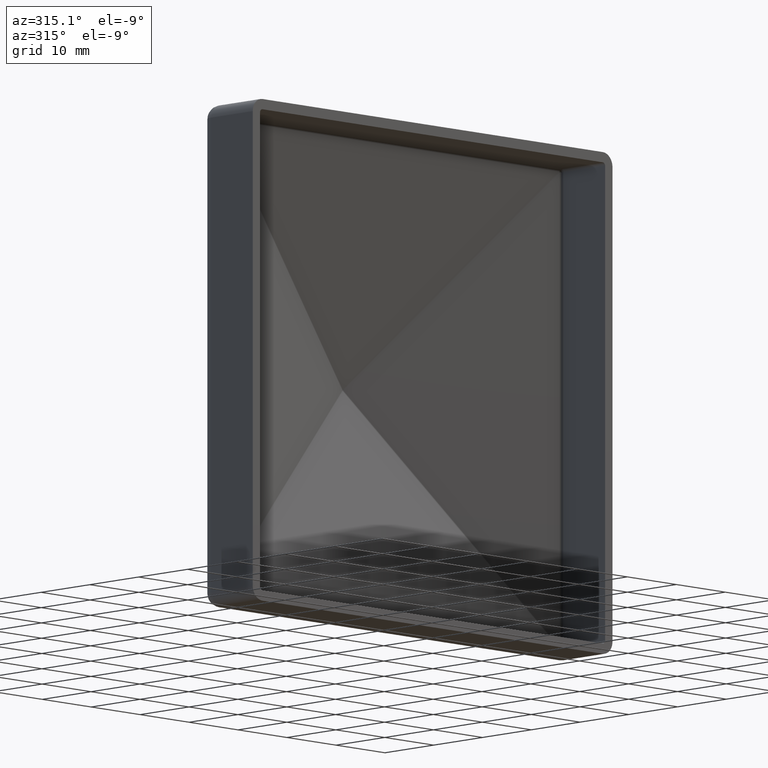
[diagram: clean part render]
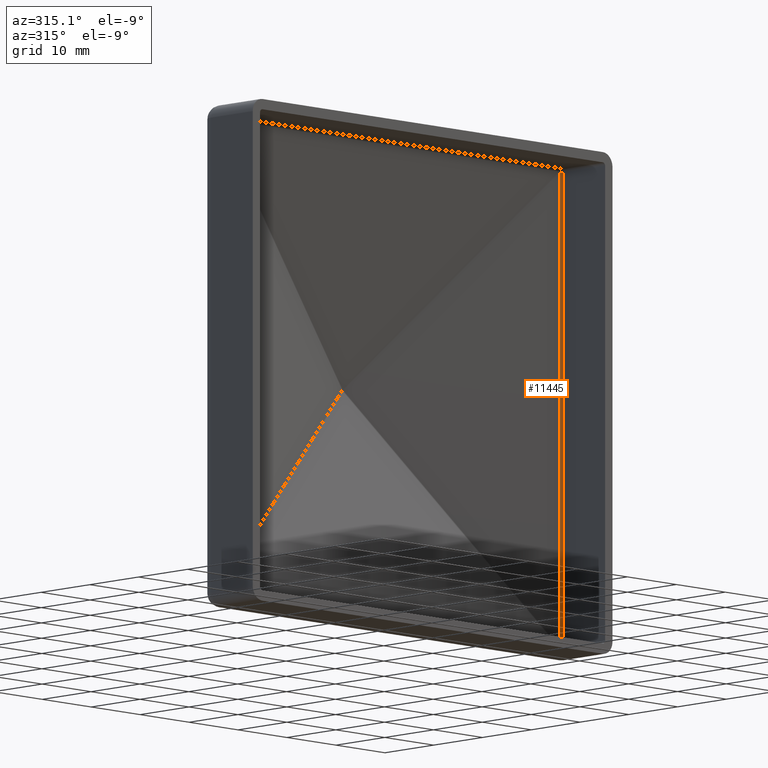
[diagram: same view with one face highlighted and labeled with its STEP entity id]
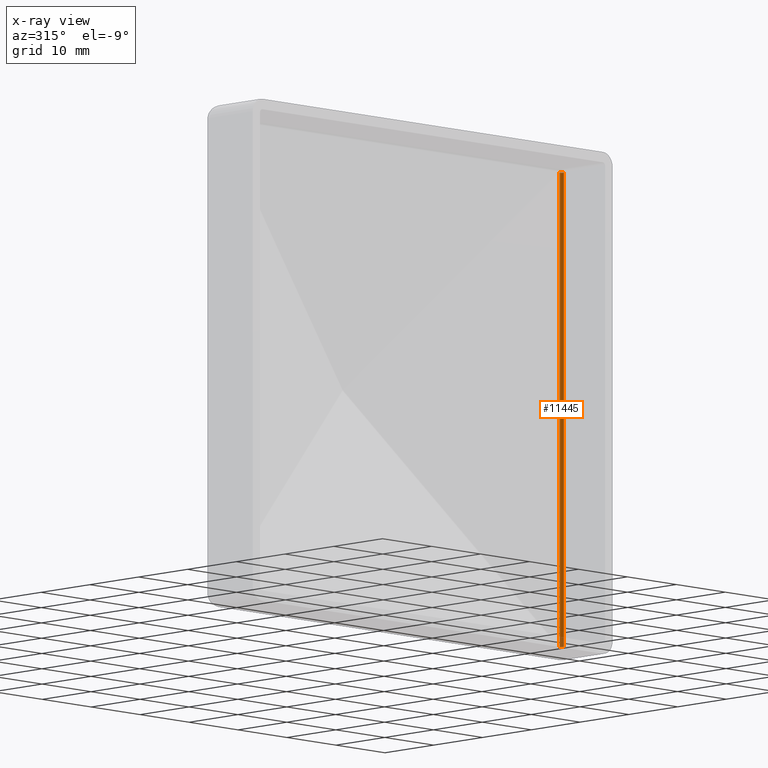
[diagram: x-ray of the same camera — body ghosted, the highlighted face saturated]
A machine part, auxiliary view. The second image highlights one B-rep face of the part: STEP entity #11445.
The next image is the same camera in x-ray: the body ghosted, the highlighted face saturated — about 2% of this face is hidden behind the body in this view.
In plain terms, the highlighted cylindrical surface (edge-blend (fillet) strip) has radius 0.5 mm, axis along (-0, -0, 1).
Its self-contained STEP definition (entity closure, byte-faithful):
#55 = ORIENTED_EDGE ( 'NONE', *, *, #11106, .F. ) ;
#64 = DIRECTION ( 'NONE',  ( 1.000000000000000000, 0.000000000000000000, 0.000000000000000000 ) ) ;
#915 = CIRCLE ( 'NONE', #4321, 0.5000000000000004441 ) ;
#1216 = CARTESIAN_POINT ( 'NONE',  ( 35.25000000000000000, 8.471642575352495541, 34.74999999999998579 ) ) ;
#1630 = LINE ( 'NONE', #8280, #4490 ) ;
#1837 = CARTESIAN_POINT ( 'NONE',  ( 35.24999999999999289, 8.471642575352495541, -36.75000000000000711 ) ) ;
#2070 = CARTESIAN_POINT ( 'NONE',  ( 35.24999999999999289, 8.471642575352495541, -34.75000000000000000 ) ) ;
#2413 = DIRECTION ( 'NONE',  ( -0.000000000000000000, -0.000000000000000000, 1.000000000000000000 ) ) ;
#2540 = EDGE_CURVE ( 'NONE', #2756, #5784, #915, .T. ) ;
#2581 = CYLINDRICAL_SURFACE ( 'NONE', #7295, 0.5000000000000004441 ) ;
#2756 = VERTEX_POINT ( 'NONE', #1216 ) ;
#3059 = FACE_OUTER_BOUND ( 'NONE', #13030, .T. ) ;
#4086 = VERTEX_POINT ( 'NONE', #2070 ) ;
#4321 = AXIS2_PLACEMENT_3D ( 'NONE', #11363, #2413, #5269 ) ;
#4490 = VECTOR ( 'NONE', #7159, 1000.000000000000000 ) ;
#4872 = VERTEX_POINT ( 'NONE', #8040 ) ;
#5269 = DIRECTION ( 'NONE',  ( 1.000000000000000000, 0.000000000000000000, 0.000000000000000000 ) ) ;
#5760 = DIRECTION ( 'NONE',  ( 1.000000000000000000, -3.469446951953611033E-15, 0.000000000000000000 ) ) ;
#5784 = VERTEX_POINT ( 'NONE', #7442 ) ;
#5935 = LINE ( 'NONE', #1837, #8347 ) ;
#6160 = CARTESIAN_POINT ( 'NONE',  ( 34.75000000000000000, 8.471642575352495541, -36.75000000000000711 ) ) ;
#6243 = DIRECTION ( 'NONE',  ( -0.000000000000000000, -0.000000000000000000, 1.000000000000000000 ) ) ;
#7159 = DIRECTION ( 'NONE',  ( -0.000000000000000000, -0.000000000000000000, 1.000000000000000000 ) ) ;
#7295 = AXIS2_PLACEMENT_3D ( 'NONE', #6160, #6243, #64 ) ;
#7442 = CARTESIAN_POINT ( 'NONE',  ( 34.88132544520084366, 8.954088041123295483, 34.74999999999995026 ) ) ;
#8023 = EDGE_CURVE ( 'NONE', #4086, #2756, #5935, .T. ) ;
#8040 = CARTESIAN_POINT ( 'NONE',  ( 34.88132544520084366, 8.954088041123295483, -34.75000000000000711 ) ) ;
#8057 = ORIENTED_EDGE ( 'NONE', *, *, #11979, .T. ) ;
#8280 = CARTESIAN_POINT ( 'NONE',  ( 34.88132544520084366, 8.954088041123295483, -36.75000000000000711 ) ) ;
#8347 = VECTOR ( 'NONE', #10026, 1000.000000000000000 ) ;
#8880 = DIRECTION ( 'NONE',  ( 0.000000000000000000, 0.000000000000000000, -1.000000000000000000 ) ) ;
#9840 = ORIENTED_EDGE ( 'NONE', *, *, #8023, .T. ) ;
#10026 = DIRECTION ( 'NONE',  ( 1.888134395621014649E-16, 0.000000000000000000, 1.000000000000000000 ) ) ;
#11106 = EDGE_CURVE ( 'NONE', #4872, #5784, #1630, .T. ) ;
#11138 = ORIENTED_EDGE ( 'NONE', *, *, #2540, .T. ) ;
#11363 = CARTESIAN_POINT ( 'NONE',  ( 34.75000000000000000, 8.471642575352495541, 34.74999999999996447 ) ) ;
#11375 = AXIS2_PLACEMENT_3D ( 'NONE', #11995, #8880, #5760 ) ;
#11445 = ADVANCED_FACE ( 'NONE', ( #3059 ), #2581, .F. ) ;
#11979 = EDGE_CURVE ( 'NONE', #4872, #4086, #12624, .T. ) ;
#11995 = CARTESIAN_POINT ( 'NONE',  ( 34.75000000000000000, 8.471642575352495541, -34.75000000000000711 ) ) ;
#12624 = CIRCLE ( 'NONE', #11375, 0.5000000000000004441 ) ;
#13030 = EDGE_LOOP ( 'NONE', ( #55, #8057, #9840, #11138 ) ) ;